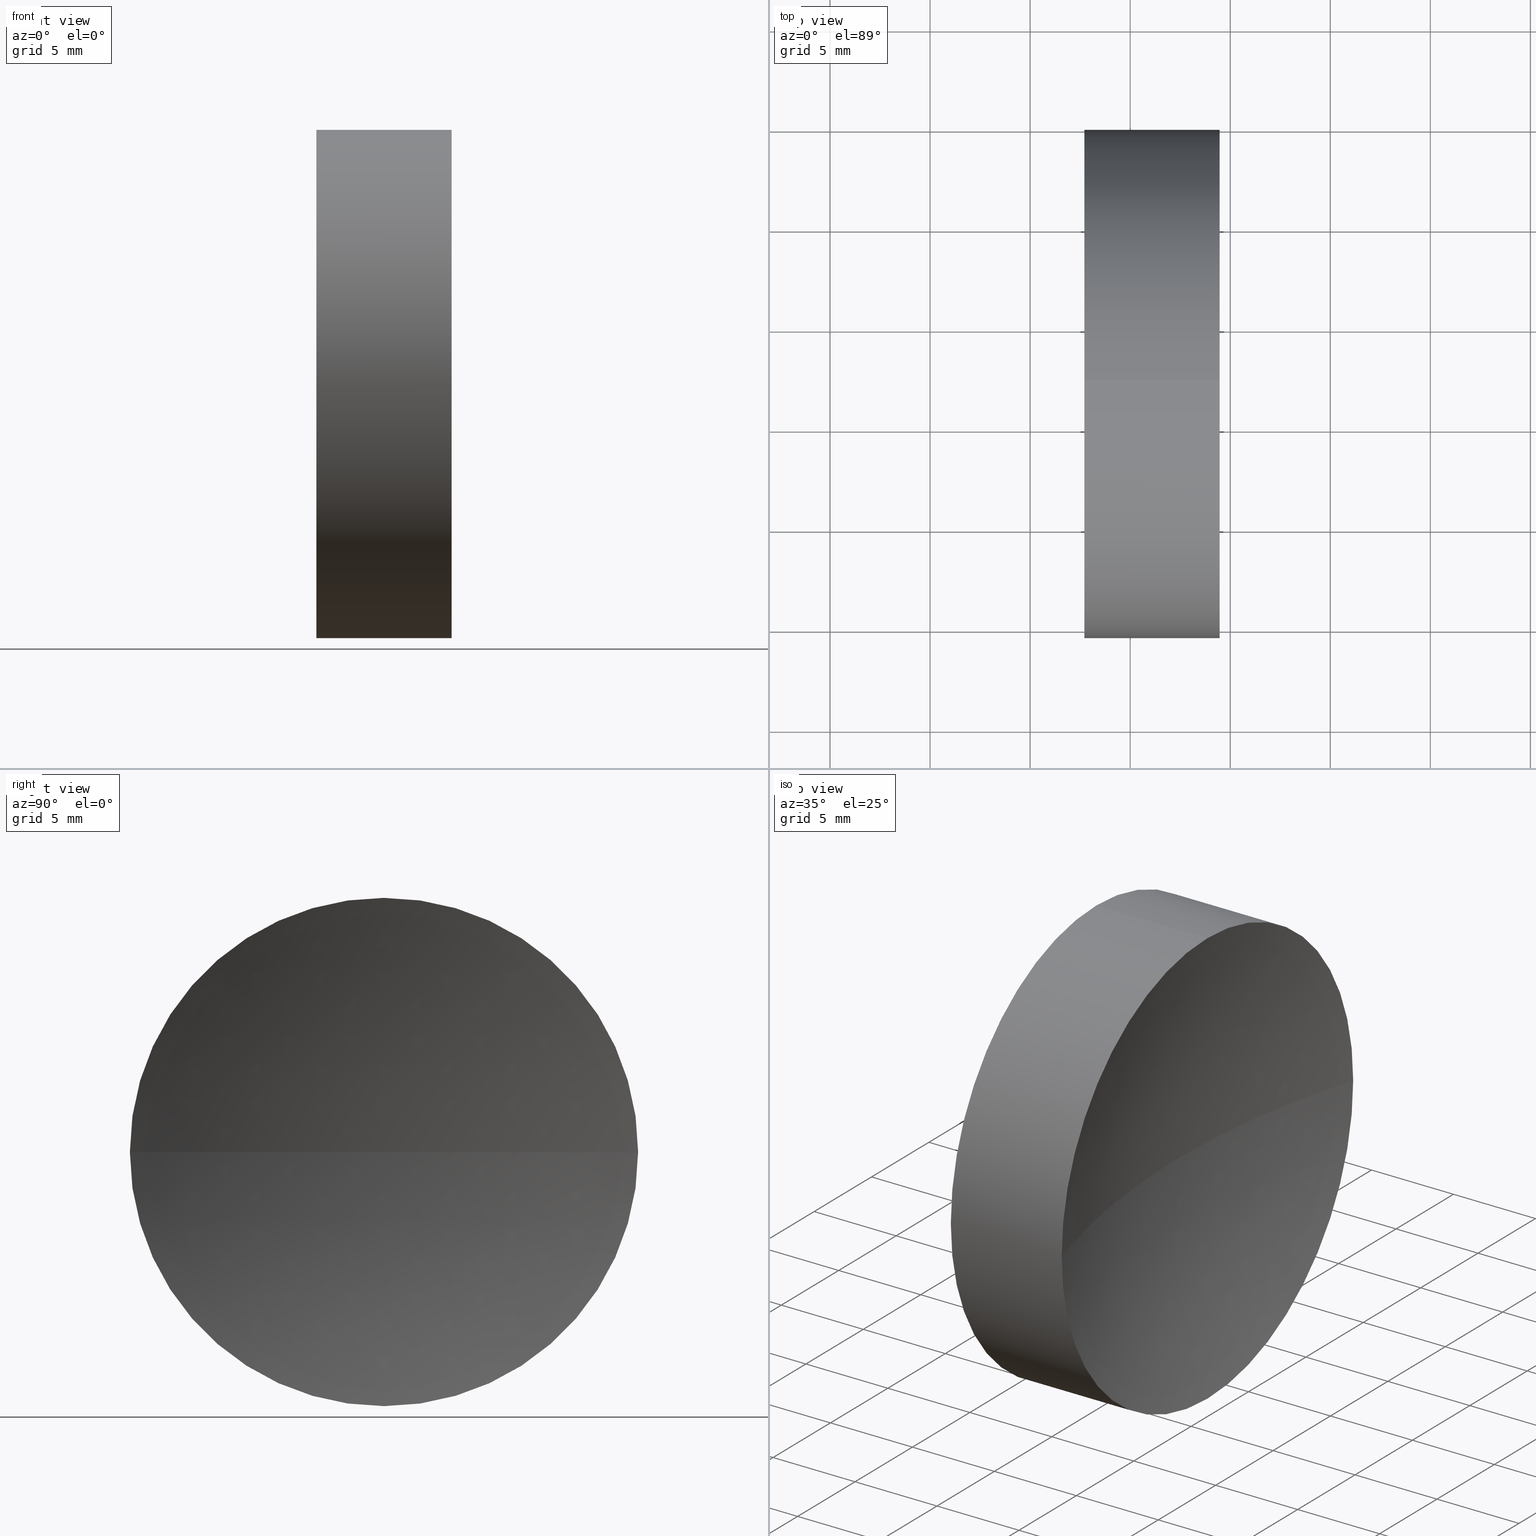
[diagram: canonical four-view strip — front | top / right | iso, engineering-drawing reading convention]
A machine part, canonical four-view strip (front | top / right | iso — engineering-drawing reading convention). The complete STEP part file that produces these views, byte-faithful:
ISO-10303-21;
HEADER;
FILE_DESCRIPTION (( 'STEP AP214' ),
    '1' );
FILE_NAME ('130073.STEP',
    '2019-07-03T01:57:15',
    ( '' ),
    ( '' ),
    'SwSTEP 2.0',
    'SolidWorks 2016',
    '' );
FILE_SCHEMA (( 'AUTOMOTIVE_DESIGN' ));
ENDSEC;

DATA;
#1 = COLOUR_RGB ( '',1.000000000000000000, 1.000000000000000000, 1.000000000000000000 ) ;
#2 = ORIENTED_EDGE ( 'NONE', *, *, #59, .T. ) ;
#3 =( NAMED_UNIT ( * ) PLANE_ANGLE_UNIT ( ) SI_UNIT ( $, .RADIAN. ) );
#4 = DIRECTION ( 'NONE',  ( 0.0000000000000000000, 0.0000000000000000000, 1.000000000000000000 ) ) ;
#5 =( GEOMETRIC_REPRESENTATION_CONTEXT ( 3 ) GLOBAL_UNCERTAINTY_ASSIGNED_CONTEXT ( ( #88 ) ) GLOBAL_UNIT_ASSIGNED_CONTEXT ( ( #205, #168, #117 ) ) REPRESENTATION_CONTEXT ( 'NONE', 'WORKASPACE' ) );
#6 = VERTEX_POINT ( 'NONE', #122 ) ;
#7 = DIRECTION ( 'NONE',  ( -1.000000000000000000, -0.0000000000000000000, -0.0000000000000000000 ) ) ;
#8 = DIRECTION ( 'NONE',  ( 0.0000000000000000000, 1.000000000000000000, 1.224646799147353500E-016 ) ) ;
#9 = CARTESIAN_POINT ( 'NONE',  ( 50.79044396835995900, 52.17808229838991700, 0.0000000000000000000 ) ) ;
#10 = ADVANCED_FACE ( 'NONE', ( #160 ), #68, .T. ) ;
#11 = ORIENTED_EDGE ( 'NONE', *, *, #29, .F. ) ;
#12 = VECTOR ( 'NONE', #146, 1000.000000000000000 ) ;
#13 = ORIENTED_EDGE ( 'NONE', *, *, #195, .F. ) ;
#14 = ORIENTED_EDGE ( 'NONE', *, *, #232, .F. ) ;
#15 = AXIS2_PLACEMENT_3D ( 'NONE', #218, #92, #108 ) ;
#16 = PRESENTATION_STYLE_ASSIGNMENT (( #53 ) ) ;
#17 = ORIENTED_EDGE ( 'NONE', *, *, #217, .F. ) ;
#18 = MANIFOLD_SOLID_BREP ( '��ת1', #63 ) ;
#19 = CYLINDRICAL_SURFACE ( 'NONE', #64, 12.69999999999999600 ) ;
#20 = CARTESIAN_POINT ( 'NONE',  ( 84.89972222827364600, 52.17808229838991700, 0.0000000000000000000 ) ) ;
#21 = DIRECTION ( 'NONE',  ( 0.0000000000000000000, 0.0000000000000000000, 1.000000000000000000 ) ) ;
#22 = VERTEX_POINT ( 'NONE', #105 ) ;
#23 = ADVANCED_FACE ( 'NONE', ( #162 ), #119, .F. ) ;
#24 = CARTESIAN_POINT ( 'NONE',  ( 92.70881702839177800, 52.17808229838991700, 0.0000000000000000000 ) ) ;
#25 = EDGE_CURVE ( 'NONE', #31, #38, #207, .T. ) ;
#26 = DIRECTION ( 'NONE',  ( -1.000000000000000000, -0.0000000000000000000, -0.0000000000000000000 ) ) ;
#27 = CIRCLE ( 'NONE', #36, 12.69999999999999600 ) ;
#28 = CIRCLE ( 'NONE', #51, 12.69999999999999600 ) ;
#29 = EDGE_CURVE ( 'NONE', #6, #82, #27, .T. ) ;
#30 = LINE ( 'NONE', #131, #216 ) ;
#31 = VERTEX_POINT ( 'NONE', #110 ) ;
#32 = CARTESIAN_POINT ( 'NONE',  ( 84.89972222827364600, 52.17808229838991700, 0.0000000000000000000 ) ) ;
#33 = EDGE_CURVE ( 'NONE', #34, #31, #166, .T. ) ;
#34 = VERTEX_POINT ( 'NONE', #130 ) ;
#35 = DIRECTION ( 'NONE',  ( 0.0000000000000000000, 0.0000000000000000000, -1.000000000000000000 ) ) ;
#36 = AXIS2_PLACEMENT_3D ( 'NONE', #182, #69, #201 ) ;
#37 = ORIENTED_EDGE ( 'NONE', *, *, #176, .T. ) ;
#38 = VERTEX_POINT ( 'NONE', #40 ) ;
#39 = PRODUCT ( '130073', '130073', '', ( #226 ) ) ;
#40 = CARTESIAN_POINT ( 'NONE',  ( 99.47207090832816300, 64.87808229838989900, 1.555301434917137200E-015 ) ) ;
#41 = CARTESIAN_POINT ( 'NONE',  ( 99.47207090832816300, 52.17808229838991700, 0.0000000000000000000 ) ) ;
#42 = SURFACE_SIDE_STYLE ('',( #136 ) ) ;
#43 = DIRECTION ( 'NONE',  ( -1.000000000000000000, -0.0000000000000000000, -0.0000000000000000000 ) ) ;
#44 = DIRECTION ( 'NONE',  ( 0.0000000000000000000, 0.0000000000000000000, 1.000000000000000000 ) ) ;
#45 = DIRECTION ( 'NONE',  ( -1.000000000000000000, -0.0000000000000000000, -0.0000000000000000000 ) ) ;
#46 = PRODUCT_DEFINITION_SHAPE ( 'NONE', 'NONE',  #142 ) ;
#47 = ORIENTED_EDGE ( 'NONE', *, *, #25, .T. ) ;
#48 = EDGE_CURVE ( 'NONE', #38, #181, #183, .T. ) ;
#49 = FACE_OUTER_BOUND ( 'NONE', #60, .T. ) ;
#50 = ORIENTED_EDGE ( 'NONE', *, *, #141, .F. ) ;
#51 = AXIS2_PLACEMENT_3D ( 'NONE', #152, #43, #154 ) ;
#52 = SHAPE_DEFINITION_REPRESENTATION ( #46, #209 ) ;
#53 = SURFACE_STYLE_USAGE ( .BOTH. , #90 ) ;
#54 = LINE ( 'NONE', #70, #12 ) ;
#55 = ADVANCED_FACE ( 'NONE', ( #49 ), #134, .F. ) ;
#56 = ORIENTED_EDGE ( 'NONE', *, *, #195, .T. ) ;
#57 = DIRECTION ( 'NONE',  ( 0.0000000000000000000, -1.000000000000000000, 0.0000000000000000000 ) ) ;
#58 = DIRECTION ( 'NONE',  ( 0.0000000000000000000, -1.000000000000000000, 0.0000000000000000000 ) ) ;
#59 = EDGE_CURVE ( 'NONE', #22, #161, #173, .T. ) ;
#60 = EDGE_LOOP ( 'NONE', ( #14, #2, #37, #221 ) ) ;
#61 = AXIS2_PLACEMENT_3D ( 'NONE', #150, #7, #124 ) ;
#62 = ORIENTED_EDGE ( 'NONE', *, *, #191, .F. ) ;
#63 = CLOSED_SHELL ( 'NONE', ( #10, #23, #77, #55, #145, #96 ) ) ;
#64 = AXIS2_PLACEMENT_3D ( 'NONE', #20, #200, #4 ) ;
#65 = CIRCLE ( 'NONE', #80, 12.69999999999999600 ) ;
#66 = VERTEX_POINT ( 'NONE', #185 ) ;
#67 = AXIS2_PLACEMENT_3D ( 'NONE', #9, #35, #109 ) ;
#68 = CYLINDRICAL_SURFACE ( 'NONE', #165, 12.69999999999999600 ) ;
#69 = DIRECTION ( 'NONE',  ( -1.000000000000000000, -0.0000000000000000000, -0.0000000000000000000 ) ) ;
#70 = CARTESIAN_POINT ( 'NONE',  ( 84.89972222827364600, 52.17808229838991700, 12.69999999999999600 ) ) ;
#71 = PRESENTATION_LAYER_ASSIGNMENT (  '', '', ( #104 ) ) ;
#72 = FACE_OUTER_BOUND ( 'NONE', #139, .T. ) ;
#73 = FACE_OUTER_BOUND ( 'NONE', #107, .T. ) ;
#74 = ORIENTED_EDGE ( 'NONE', *, *, #29, .T. ) ;
#75 = CARTESIAN_POINT ( 'NONE',  ( 92.70881702839177800, 52.17808229838991700, 0.0000000000000000000 ) ) ;
#76 = APPLICATION_PROTOCOL_DEFINITION ( 'draft international standard', 'automotive_design', 1998, #133 ) ;
#77 = ADVANCED_FACE ( 'NONE', ( #220 ), #228, .F. ) ;
#78 = DIRECTION ( 'NONE',  ( -1.000000000000000000, -0.0000000000000000000, -0.0000000000000000000 ) ) ;
#79 = CARTESIAN_POINT ( 'NONE',  ( 50.79044396835995900, 52.17808229838991700, 0.0000000000000000000 ) ) ;
#80 = AXIS2_PLACEMENT_3D ( 'NONE', #75, #94, #222 ) ;
#81 = CIRCLE ( 'NONE', #116, 43.79999999999999700 ) ;
#82 = VERTEX_POINT ( 'NONE', #97 ) ;
#83 = APPLICATION_CONTEXT ( 'automotive_design' ) ;
#84 = ORIENTED_EDGE ( 'NONE', *, *, #217, .T. ) ;
#85 = AXIS2_PLACEMENT_3D ( 'NONE', #111, #100, #155 ) ;
#86 = MECHANICAL_DESIGN_GEOMETRIC_PRESENTATION_REPRESENTATION (  '', ( #127 ), #225 ) ;
#87 = ORIENTED_EDGE ( 'NONE', *, *, #141, .T. ) ;
#88 = UNCERTAINTY_MEASURE_WITH_UNIT (LENGTH_MEASURE( 1.000000000000000100E-005 ), #205, 'distance_accuracy_value', 'NONE');
#89 = ORIENTED_EDGE ( 'NONE', *, *, #25, .F. ) ;
#90 = SURFACE_SIDE_STYLE ('',( #106 ) ) ;
#91 = AXIS2_PLACEMENT_3D ( 'NONE', #24, #78, #204 ) ;
#92 = DIRECTION ( 'NONE',  ( 0.0000000000000000000, -1.224646799147353200E-016, 1.000000000000000000 ) ) ;
#93 = CIRCLE ( 'NONE', #91, 12.69999999999999600 ) ;
#94 = DIRECTION ( 'NONE',  ( -1.000000000000000000, -0.0000000000000000000, -0.0000000000000000000 ) ) ;
#95 = DIRECTION ( 'NONE',  ( -1.000000000000000000, -0.0000000000000000000, -0.0000000000000000000 ) ) ;
#96 = ADVANCED_FACE ( 'NONE', ( #73 ), #19, .T. ) ;
#97 = CARTESIAN_POINT ( 'NONE',  ( 92.70881702839177800, 52.17808229838991700, 12.69999999999999600 ) ) ;
#98 = CARTESIAN_POINT ( 'NONE',  ( 92.70881702839177800, 52.17808229838991700, 0.0000000000000000000 ) ) ;
#99 = EDGE_LOOP ( 'NONE', ( #84, #198, #112, #147, #50, #47 ) ) ;
#100 = DIRECTION ( 'NONE',  ( 0.0000000000000000000, 0.0000000000000000000, -1.000000000000000000 ) ) ;
#101 = APPLICATION_PROTOCOL_DEFINITION ( 'draft international standard', 'automotive_design', 1998, #83 ) ;
#102 = ORIENTED_EDGE ( 'NONE', *, *, #158, .F. ) ;
#103 = PRODUCT_DEFINITION_FORMATION_WITH_SPECIFIED_SOURCE ( '�κ�', '', #39, .NOT_KNOWN. ) ;
#104 = STYLED_ITEM ( 'NONE', ( #159 ), #209 ) ;
#105 = CARTESIAN_POINT ( 'NONE',  ( 94.59044396835997800, 52.17808229838991700, 0.0000000000000000000 ) ) ;
#106 = SURFACE_STYLE_FILL_AREA ( #180 ) ;
#107 = EDGE_LOOP ( 'NONE', ( #62, #123, #184, #87, #11, #208 ) ) ;
#108 = DIRECTION ( 'NONE',  ( 0.0000000000000000000, -1.000000000000000000, -1.224646799147353200E-016 ) ) ;
#109 = DIRECTION ( 'NONE',  ( 0.0000000000000000000, 1.000000000000000000, 0.0000000000000000000 ) ) ;
#110 = CARTESIAN_POINT ( 'NONE',  ( 99.47207090832816300, 52.17808229838991700, 12.69999999999999600 ) ) ;
#111 = CARTESIAN_POINT ( 'NONE',  ( 141.3904439683599600, 52.17808229838991700, 0.0000000000000000000 ) ) ;
#112 = ORIENTED_EDGE ( 'NONE', *, *, #176, .F. ) ;
#113 = DIRECTION ( 'NONE',  ( 0.0000000000000000000, 0.0000000000000000000, 1.000000000000000000 ) ) ;
#114 = DIRECTION ( 'NONE',  ( 0.0000000000000000000, 0.0000000000000000000, 1.000000000000000000 ) ) ;
#115 = CARTESIAN_POINT ( 'NONE',  ( 0.0000000000000000000, 0.0000000000000000000, 0.0000000000000000000 ) ) ;
#116 = AXIS2_PLACEMENT_3D ( 'NONE', #79, #118, #8 ) ;
#117 =( NAMED_UNIT ( * ) SI_UNIT ( $, .STERADIAN. ) SOLID_ANGLE_UNIT ( ) );
#118 = DIRECTION ( 'NONE',  ( 0.0000000000000000000, 1.224646799147353200E-016, -1.000000000000000000 ) ) ;
#119 = SPHERICAL_SURFACE ( 'NONE', #179, 43.79999999999998300 ) ;
#120 = AXIS2_PLACEMENT_3D ( 'NONE', #189, #44, #58 ) ;
#121 = EDGE_CURVE ( 'NONE', #82, #161, #65, .T. ) ;
#122 = CARTESIAN_POINT ( 'NONE',  ( 92.70881702839179200, 39.47808229838992800, -1.555301434917137200E-015 ) ) ;
#123 = ORIENTED_EDGE ( 'NONE', *, *, #158, .T. ) ;
#124 = DIRECTION ( 'NONE',  ( 0.0000000000000000000, 0.0000000000000000000, 1.000000000000000000 ) ) ;
#125 = DIRECTION ( 'NONE',  ( 0.0000000000000000000, 0.0000000000000000000, 1.000000000000000000 ) ) ;
#126 = CIRCLE ( 'NONE', #193, 12.69999999999999600 ) ;
#127 = STYLED_ITEM ( 'NONE', ( #16 ), #18 ) ;
#128 =( LENGTH_UNIT ( ) NAMED_UNIT ( * ) SI_UNIT ( .MILLI., .METRE. ) );
#129 = MECHANICAL_DESIGN_GEOMETRIC_PRESENTATION_REPRESENTATION (  '', ( #104 ), #5 ) ;
#130 = CARTESIAN_POINT ( 'NONE',  ( 99.47207090832816300, 39.47808229838992800, 0.0000000000000000000 ) ) ;
#131 = CARTESIAN_POINT ( 'NONE',  ( 84.89972222827364600, 52.17808229838991700, -12.69999999999999600 ) ) ;
#132 = EDGE_LOOP ( 'NONE', ( #17, #137, #13, #102 ) ) ;
#133 = APPLICATION_CONTEXT ( 'automotive_design' ) ;
#134 = SPHERICAL_SURFACE ( 'NONE', #169, 43.80000000000000400 ) ;
#135 =( GEOMETRIC_REPRESENTATION_CONTEXT ( 3 ) GLOBAL_UNCERTAINTY_ASSIGNED_CONTEXT ( ( #199 ) ) GLOBAL_UNIT_ASSIGNED_CONTEXT ( ( #128, #190, #188 ) ) REPRESENTATION_CONTEXT ( 'NONE', 'WORKASPACE' ) );
#136 = SURFACE_STYLE_FILL_AREA ( #157 ) ;
#137 = ORIENTED_EDGE ( 'NONE', *, *, #48, .T. ) ;
#138 = SPHERICAL_SURFACE ( 'NONE', #120, 43.79999999999998300 ) ;
#139 = EDGE_LOOP ( 'NONE', ( #148, #89, #175, #56 ) ) ;
#140 = ORIENTED_EDGE ( 'NONE', *, *, #59, .F. ) ;
#141 = EDGE_CURVE ( 'NONE', #31, #82, #54, .T. ) ;
#142 = PRODUCT_DEFINITION ( 'δ֪', '', #103, #167 ) ;
#143 =( NAMED_UNIT ( * ) SI_UNIT ( $, .STERADIAN. ) SOLID_ANGLE_UNIT ( ) );
#144 = CARTESIAN_POINT ( 'NONE',  ( 50.79044396835995900, 52.17808229838991700, 0.0000000000000000000 ) ) ;
#145 = ADVANCED_FACE ( 'NONE', ( #72 ), #138, .F. ) ;
#146 = DIRECTION ( 'NONE',  ( -1.000000000000000000, -0.0000000000000000000, -0.0000000000000000000 ) ) ;
#147 = ORIENTED_EDGE ( 'NONE', *, *, #121, .F. ) ;
#148 = ORIENTED_EDGE ( 'NONE', *, *, #48, .F. ) ;
#149 = CARTESIAN_POINT ( 'NONE',  ( 50.79044396835995900, 52.17808229838991700, 0.0000000000000000000 ) ) ;
#150 = CARTESIAN_POINT ( 'NONE',  ( 99.47207090832816300, 52.17808229838991700, 0.0000000000000000000 ) ) ;
#151 = FILL_AREA_STYLE_COLOUR ( '', #1 ) ;
#152 = CARTESIAN_POINT ( 'NONE',  ( 99.47207090832816300, 52.17808229838991700, 0.0000000000000000000 ) ) ;
#153 = SURFACE_STYLE_USAGE ( .BOTH. , #42 ) ;
#154 = DIRECTION ( 'NONE',  ( 0.0000000000000000000, 0.0000000000000000000, 1.000000000000000000 ) ) ;
#155 = DIRECTION ( 'NONE',  ( -1.000000000000000000, 0.0000000000000000000, 0.0000000000000000000 ) ) ;
#156 = ORIENTED_EDGE ( 'NONE', *, *, #121, .T. ) ;
#157 = FILL_AREA_STYLE ('',( #151 ) ) ;
#158 = EDGE_CURVE ( 'NONE', #231, #34, #28, .T. ) ;
#159 = PRESENTATION_STYLE_ASSIGNMENT (( #153 ) ) ;
#160 = FACE_OUTER_BOUND ( 'NONE', #99, .T. ) ;
#161 = VERTEX_POINT ( 'NONE', #219 ) ;
#162 = FACE_OUTER_BOUND ( 'NONE', #132, .T. ) ;
#163 = DIRECTION ( 'NONE',  ( 1.000000000000000000, 0.0000000000000000000, 0.0000000000000000000 ) ) ;
#164 = DIRECTION ( 'NONE',  ( 0.0000000000000000000, 0.0000000000000000000, -1.000000000000000000 ) ) ;
#165 = AXIS2_PLACEMENT_3D ( 'NONE', #32, #197, #215 ) ;
#166 = CIRCLE ( 'NONE', #61, 12.69999999999999600 ) ;
#167 = PRODUCT_DEFINITION_CONTEXT ( 'detailed design', #83, 'design' ) ;
#168 =( NAMED_UNIT ( * ) PLANE_ANGLE_UNIT ( ) SI_UNIT ( $, .RADIAN. ) );
#169 = AXIS2_PLACEMENT_3D ( 'NONE', #149, #164, #186 ) ;
#170 = CARTESIAN_POINT ( 'NONE',  ( 97.59044396835997800, 52.17808229838991700, 0.0000000000000000000 ) ) ;
#171 = UNCERTAINTY_MEASURE_WITH_UNIT (LENGTH_MEASURE( 1.000000000000000100E-005 ), #214, 'distance_accuracy_value', 'NONE');
#172 = DIRECTION ( 'NONE',  ( 0.0000000000000000000, 0.0000000000000000000, 1.000000000000000000 ) ) ;
#173 = CIRCLE ( 'NONE', #174, 43.80000000000001100 ) ;
#174 = AXIS2_PLACEMENT_3D ( 'NONE', #144, #125, #163 ) ;
#175 = ORIENTED_EDGE ( 'NONE', *, *, #33, .F. ) ;
#176 = EDGE_CURVE ( 'NONE', #161, #66, #93, .T. ) ;
#177 = CIRCLE ( 'NONE', #227, 12.69999999999999600 ) ;
#178 = ORIENTED_EDGE ( 'NONE', *, *, #232, .T. ) ;
#179 = AXIS2_PLACEMENT_3D ( 'NONE', #194, #21, #57 ) ;
#180 = FILL_AREA_STYLE ('',( #196 ) ) ;
#181 = VERTEX_POINT ( 'NONE', #170 ) ;
#182 = CARTESIAN_POINT ( 'NONE',  ( 92.70881702839177800, 52.17808229838991700, 0.0000000000000000000 ) ) ;
#183 = CIRCLE ( 'NONE', #15, 43.79999999999998300 ) ;
#184 = ORIENTED_EDGE ( 'NONE', *, *, #33, .T. ) ;
#185 = CARTESIAN_POINT ( 'NONE',  ( 92.70881702839177800, 52.17808229838991700, -12.69999999999999600 ) ) ;
#186 = DIRECTION ( 'NONE',  ( 0.0000000000000000000, 1.000000000000000000, 0.0000000000000000000 ) ) ;
#187 = CARTESIAN_POINT ( 'NONE',  ( 99.47207090832816300, 52.17808229838991700, -12.69999999999999600 ) ) ;
#188 =( NAMED_UNIT ( * ) SI_UNIT ( $, .STERADIAN. ) SOLID_ANGLE_UNIT ( ) );
#189 = CARTESIAN_POINT ( 'NONE',  ( 141.3904439683599600, 52.17808229838991700, 0.0000000000000000000 ) ) ;
#190 =( NAMED_UNIT ( * ) PLANE_ANGLE_UNIT ( ) SI_UNIT ( $, .RADIAN. ) );
#191 = EDGE_CURVE ( 'NONE', #231, #66, #30, .T. ) ;
#192 = PRESENTATION_LAYER_ASSIGNMENT (  '', '', ( #127 ) ) ;
#193 = AXIS2_PLACEMENT_3D ( 'NONE', #98, #45, #114 ) ;
#194 = CARTESIAN_POINT ( 'NONE',  ( 141.3904439683599600, 52.17808229838991700, 0.0000000000000000000 ) ) ;
#195 = EDGE_CURVE ( 'NONE', #34, #181, #210, .T. ) ;
#196 = FILL_AREA_STYLE_COLOUR ( '', #212 ) ;
#197 = DIRECTION ( 'NONE',  ( -1.000000000000000000, -0.0000000000000000000, -0.0000000000000000000 ) ) ;
#198 = ORIENTED_EDGE ( 'NONE', *, *, #191, .T. ) ;
#199 = UNCERTAINTY_MEASURE_WITH_UNIT (LENGTH_MEASURE( 1.000000000000000100E-005 ), #128, 'distance_accuracy_value', 'NONE');
#200 = DIRECTION ( 'NONE',  ( -1.000000000000000000, -0.0000000000000000000, -0.0000000000000000000 ) ) ;
#201 = DIRECTION ( 'NONE',  ( 0.0000000000000000000, 0.0000000000000000000, 1.000000000000000000 ) ) ;
#202 = DIRECTION ( 'NONE',  ( 0.0000000000000000000, 0.0000000000000000000, 1.000000000000000000 ) ) ;
#203 = AXIS2_PLACEMENT_3D ( 'NONE', #41, #95, #113 ) ;
#204 = DIRECTION ( 'NONE',  ( 0.0000000000000000000, 0.0000000000000000000, 1.000000000000000000 ) ) ;
#205 =( LENGTH_UNIT ( ) NAMED_UNIT ( * ) SI_UNIT ( .MILLI., .METRE. ) );
#206 = DIRECTION ( 'NONE',  ( 1.000000000000000000, 0.0000000000000000000, 0.0000000000000000000 ) ) ;
#207 = CIRCLE ( 'NONE', #203, 12.69999999999999600 ) ;
#208 = ORIENTED_EDGE ( 'NONE', *, *, #211, .F. ) ;
#209 = ADVANCED_BREP_SHAPE_REPRESENTATION ( '130073', ( #18, #213 ), #135 ) ;
#210 = CIRCLE ( 'NONE', #85, 43.79999999999997600 ) ;
#211 = EDGE_CURVE ( 'NONE', #66, #6, #126, .T. ) ;
#212 = COLOUR_RGB ( '',1.000000000000000000, 1.000000000000000000, 1.000000000000000000 ) ;
#213 = AXIS2_PLACEMENT_3D ( 'NONE', #115, #172, #206 ) ;
#214 =( LENGTH_UNIT ( ) NAMED_UNIT ( * ) SI_UNIT ( .MILLI., .METRE. ) );
#215 = DIRECTION ( 'NONE',  ( 0.0000000000000000000, 0.0000000000000000000, 1.000000000000000000 ) ) ;
#216 = VECTOR ( 'NONE', #26, 1000.000000000000000 ) ;
#217 = EDGE_CURVE ( 'NONE', #38, #231, #177, .T. ) ;
#218 = CARTESIAN_POINT ( 'NONE',  ( 141.3904439683599600, 52.17808229838991700, 0.0000000000000000000 ) ) ;
#219 = CARTESIAN_POINT ( 'NONE',  ( 92.70881702839179200, 64.87808229838989900, 0.0000000000000000000 ) ) ;
#220 = FACE_OUTER_BOUND ( 'NONE', #229, .T. ) ;
#221 = ORIENTED_EDGE ( 'NONE', *, *, #211, .T. ) ;
#222 = DIRECTION ( 'NONE',  ( 0.0000000000000000000, 0.0000000000000000000, 1.000000000000000000 ) ) ;
#223 = CARTESIAN_POINT ( 'NONE',  ( 99.47207090832816300, 52.17808229838991700, 0.0000000000000000000 ) ) ;
#224 = DIRECTION ( 'NONE',  ( -1.000000000000000000, -0.0000000000000000000, -0.0000000000000000000 ) ) ;
#225 =( GEOMETRIC_REPRESENTATION_CONTEXT ( 3 ) GLOBAL_UNCERTAINTY_ASSIGNED_CONTEXT ( ( #171 ) ) GLOBAL_UNIT_ASSIGNED_CONTEXT ( ( #214, #3, #143 ) ) REPRESENTATION_CONTEXT ( 'NONE', 'WORKASPACE' ) );
#226 = PRODUCT_CONTEXT ( 'NONE', #133, 'mechanical' ) ;
#227 = AXIS2_PLACEMENT_3D ( 'NONE', #223, #224, #202 ) ;
#228 = SPHERICAL_SURFACE ( 'NONE', #67, 43.80000000000000400 ) ;
#229 = EDGE_LOOP ( 'NONE', ( #140, #178, #74, #156 ) ) ;
#230 = PRODUCT_RELATED_PRODUCT_CATEGORY ( 'part', '', ( #39 ) ) ;
#231 = VERTEX_POINT ( 'NONE', #187 ) ;
#232 = EDGE_CURVE ( 'NONE', #22, #6, #81, .T. ) ;
ENDSEC;
END-ISO-10303-21;
